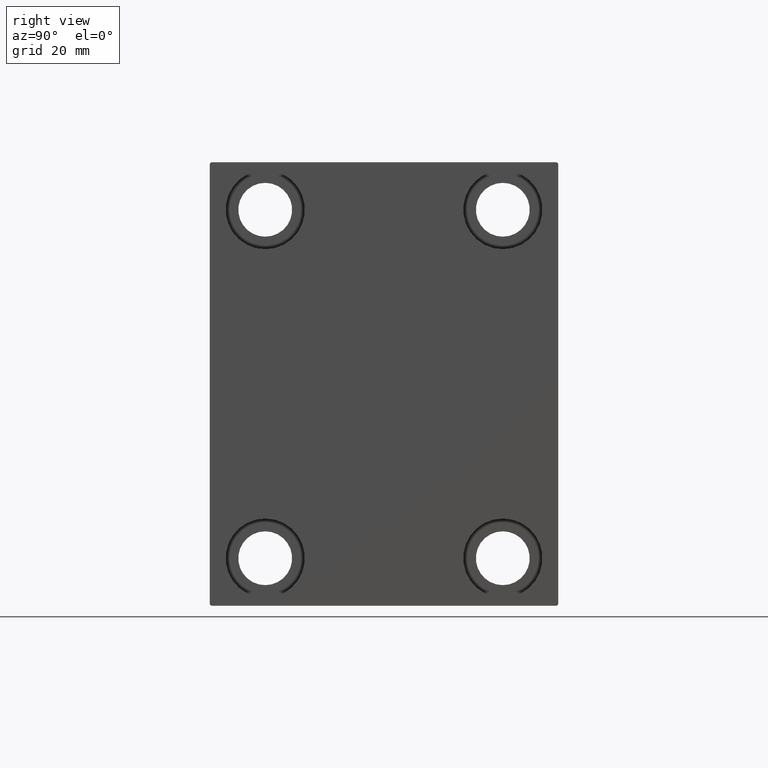
[diagram: clean part render]
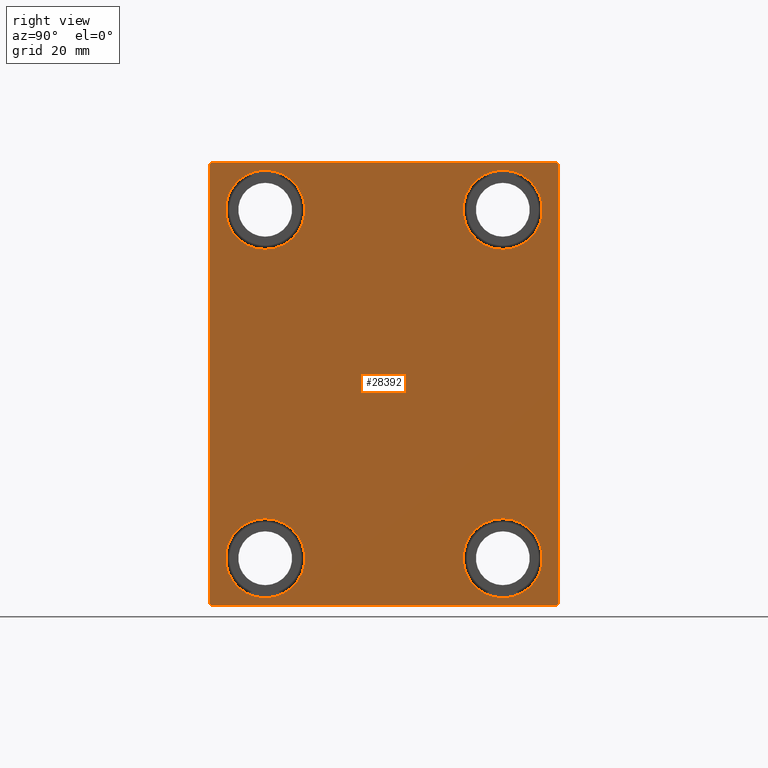
[diagram: same view with one face highlighted and labeled with its STEP entity id]
A machine part, right view. The second image highlights one B-rep face of the part: STEP entity #28392.
In plain terms, the highlighted planar face has unit normal (1, 0, 0).
Its self-contained STEP definition (entity closure, byte-faithful):
#776 = VERTEX_POINT ( 'NONE', #20090 ) ;
#1040 = AXIS2_PLACEMENT_3D ( 'NONE', #41244, #34332, #20752 ) ;
#1193 = LINE ( 'NONE', #25011, #23846 ) ;
#1345 = VERTEX_POINT ( 'NONE', #34859 ) ;
#1417 = CARTESIAN_POINT ( 'NONE',  ( 133.0000000000000000, 37.49999999999997868, -54.99999999999999289 ) ) ;
#1424 = DIRECTION ( 'NONE',  ( -1.000000000000000000, -0.000000000000000000, -0.000000000000000000 ) ) ;
#1984 = EDGE_CURVE ( 'NONE', #35167, #13497, #42323, .T. ) ;
#2400 = EDGE_CURVE ( 'NONE', #23347, #18239, #30944, .T. ) ;
#2684 = DIRECTION ( 'NONE',  ( 0.000000000000000000, 1.000000000000000000, 2.523234146875355012E-16 ) ) ;
#2693 = AXIS2_PLACEMENT_3D ( 'NONE', #34875, #21299, #31514 ) ;
#2802 = CARTESIAN_POINT ( 'NONE',  ( 133.0000000000000000, -37.50000000000000711, 67.50000000000000000 ) ) ;
#2980 = PLANE ( 'NONE',  #1040 ) ;
#3041 = LINE ( 'NONE', #27515, #28059 ) ;
#3383 = CIRCLE ( 'NONE', #2693, 12.49999999999999645 ) ;
#3700 = EDGE_CURVE ( 'NONE', #18239, #23347, #42392, .T. ) ;
#4400 = ORIENTED_EDGE ( 'NONE', *, *, #22306, .T. ) ;
#4522 = DIRECTION ( 'NONE',  ( -0.000000000000000000, 0.7071067811865376918, -0.7071067811865574537 ) ) ;
#5611 = CARTESIAN_POINT ( 'NONE',  ( 133.0000000000000000, -37.50000000000000711, 42.50000000000000711 ) ) ;
#5769 = DIRECTION ( 'NONE',  ( 0.000000000000000000, -1.982541115402065110E-16, 1.000000000000000000 ) ) ;
#6021 = AXIS2_PLACEMENT_3D ( 'NONE', #1417, #21891, #35478 ) ;
#6134 = DIRECTION ( 'NONE',  ( 0.000000000000000000, -1.000000000000000000, -1.261617073437677999E-16 ) ) ;
#6528 = FACE_BOUND ( 'NONE', #14724, .T. ) ;
#6785 = EDGE_CURVE ( 'NONE', #13497, #35167, #29628, .T. ) ;
#6905 = DIRECTION ( 'NONE',  ( -1.000000000000000000, -0.000000000000000000, -0.000000000000000000 ) ) ;
#7123 = CARTESIAN_POINT ( 'NONE',  ( 133.0000000000000000, 37.50000000000000711, 42.50000000000000711 ) ) ;
#7174 = FACE_BOUND ( 'NONE', #30402, .T. ) ;
#7722 = ORIENTED_EDGE ( 'NONE', *, *, #31959, .T. ) ;
#7941 = LINE ( 'NONE', #34883, #16606 ) ;
#8459 = VERTEX_POINT ( 'NONE', #28240 ) ;
#8645 = ORIENTED_EDGE ( 'NONE', *, *, #30619, .T. ) ;
#9853 = VERTEX_POINT ( 'NONE', #40519 ) ;
#10905 = CARTESIAN_POINT ( 'NONE',  ( 133.0000000000000000, -37.50000000000002132, -54.99999999999999289 ) ) ;
#10944 = DIRECTION ( 'NONE',  ( 0.000000000000000000, 0.000000000000000000, 1.000000000000000000 ) ) ;
#11353 = EDGE_CURVE ( 'NONE', #22723, #12120, #34833, .T. ) ;
#11505 = ORIENTED_EDGE ( 'NONE', *, *, #40516, .T. ) ;
#12120 = VERTEX_POINT ( 'NONE', #17635 ) ;
#12576 = CARTESIAN_POINT ( 'NONE',  ( 133.0000000000000000, 54.99999999999999289, 70.00000000000000000 ) ) ;
#13224 = VERTEX_POINT ( 'NONE', #7123 ) ;
#13497 = VERTEX_POINT ( 'NONE', #29323 ) ;
#13761 = VECTOR ( 'NONE', #5769, 1000.000000000000000 ) ;
#13937 = DIRECTION ( 'NONE',  ( 0.000000000000000000, 0.000000000000000000, -1.000000000000000000 ) ) ;
#14273 = CARTESIAN_POINT ( 'NONE',  ( 133.0000000000000000, 37.49999999999997868, -54.99999999999999289 ) ) ;
#14363 = ORIENTED_EDGE ( 'NONE', *, *, #33019, .T. ) ;
#14724 = EDGE_LOOP ( 'NONE', ( #22039, #11505 ) ) ;
#15138 = DIRECTION ( 'NONE',  ( 0.000000000000000000, -0.7071067811865474617, -0.7071067811865474617 ) ) ;
#15194 = DIRECTION ( 'NONE',  ( 0.000000000000000000, 0.000000000000000000, 1.000000000000000000 ) ) ;
#15425 = ORIENTED_EDGE ( 'NONE', *, *, #30202, .T. ) ;
#16149 = LINE ( 'NONE', #12576, #30717 ) ;
#16606 = VECTOR ( 'NONE', #13937, 1000.000000000000000 ) ;
#17150 = DIRECTION ( 'NONE',  ( 0.000000000000000000, 0.000000000000000000, 1.000000000000000000 ) ) ;
#17292 = ORIENTED_EDGE ( 'NONE', *, *, #39251, .T. ) ;
#17635 = CARTESIAN_POINT ( 'NONE',  ( 133.0000000000000000, 54.49999999999996447, 70.00000000000000000 ) ) ;
#18117 = LINE ( 'NONE', #29616, #26850 ) ;
#18239 = VERTEX_POINT ( 'NONE', #2802 ) ;
#18798 = CARTESIAN_POINT ( 'NONE',  ( 133.0000000000000000, 62.24999999999997868, 62.24999999999997868 ) ) ;
#18903 = CARTESIAN_POINT ( 'NONE',  ( 133.0000000000000000, 37.50000000000000711, 55.00000000000000711 ) ) ;
#19716 = ORIENTED_EDGE ( 'NONE', *, *, #1984, .T. ) ;
#19964 = DIRECTION ( 'NONE',  ( -1.000000000000000000, -0.000000000000000000, -0.000000000000000000 ) ) ;
#20090 = CARTESIAN_POINT ( 'NONE',  ( 133.0000000000000000, 37.50000000000000711, 67.50000000000000000 ) ) ;
#20168 = DIRECTION ( 'NONE',  ( -0.000000000000000000, 0.7071067811865279218, 0.7071067811865671127 ) ) ;
#20752 = DIRECTION ( 'NONE',  ( 0.000000000000000000, 0.000000000000000000, -1.000000000000000000 ) ) ;
#20755 = CARTESIAN_POINT ( 'NONE',  ( 133.0000000000000000, 55.00000000000002132, -69.50000000000000000 ) ) ;
#21299 = DIRECTION ( 'NONE',  ( -1.000000000000000000, -0.000000000000000000, -0.000000000000000000 ) ) ;
#21753 = AXIS2_PLACEMENT_3D ( 'NONE', #35025, #1424, #15194 ) ;
#21891 = DIRECTION ( 'NONE',  ( -1.000000000000000000, -0.000000000000000000, -0.000000000000000000 ) ) ;
#22039 = ORIENTED_EDGE ( 'NONE', *, *, #27273, .T. ) ;
#22306 = EDGE_CURVE ( 'NONE', #42417, #9853, #30625, .T. ) ;
#22723 = VERTEX_POINT ( 'NONE', #43154 ) ;
#23105 = AXIS2_PLACEMENT_3D ( 'NONE', #33423, #6905, #17150 ) ;
#23347 = VERTEX_POINT ( 'NONE', #5611 ) ;
#23615 = CARTESIAN_POINT ( 'NONE',  ( 133.0000000000000000, -55.00000000000000711, 69.50000000000001421 ) ) ;
#23846 = VECTOR ( 'NONE', #4522, 999.9999999999998863 ) ;
#24100 = FACE_BOUND ( 'NONE', #37372, .T. ) ;
#24514 = EDGE_LOOP ( 'NONE', ( #36074, #17292, #15425, #29772, #25300, #7722, #8645, #42915 ) ) ;
#24760 = DIRECTION ( 'NONE',  ( -1.000000000000000000, -0.000000000000000000, -0.000000000000000000 ) ) ;
#24772 = VECTOR ( 'NONE', #42404, 1000.000000000000114 ) ;
#25011 = CARTESIAN_POINT ( 'NONE',  ( 133.0000000000000000, -62.25000000000078160, -62.24999999999904787 ) ) ;
#25199 = VERTEX_POINT ( 'NONE', #27922 ) ;
#25300 = ORIENTED_EDGE ( 'NONE', *, *, #41016, .T. ) ;
#26052 = CARTESIAN_POINT ( 'NONE',  ( 133.0000000000000000, -62.25000000000000711, 62.25000000000000711 ) ) ;
#26614 = ORIENTED_EDGE ( 'NONE', *, *, #3700, .T. ) ;
#26718 = EDGE_CURVE ( 'NONE', #12120, #25199, #16149, .T. ) ;
#26850 = VECTOR ( 'NONE', #2684, 1000.000000000000000 ) ;
#27046 = CARTESIAN_POINT ( 'NONE',  ( 133.0000000000000000, 54.50000000000004974, -70.00000000000000000 ) ) ;
#27084 = CARTESIAN_POINT ( 'NONE',  ( 133.0000000000000000, -37.50000000000000711, 55.00000000000000711 ) ) ;
#27273 = EDGE_CURVE ( 'NONE', #13224, #776, #34420, .T. ) ;
#27515 = CARTESIAN_POINT ( 'NONE',  ( 133.0000000000000000, 62.25000000000153477, -62.24999999999808153 ) ) ;
#27922 = CARTESIAN_POINT ( 'NONE',  ( 133.0000000000000000, -54.50000000000003553, 69.99999999999998579 ) ) ;
#28059 = VECTOR ( 'NONE', #20168, 1000.000000000000000 ) ;
#28240 = CARTESIAN_POINT ( 'NONE',  ( 133.0000000000000000, -54.50000000000000711, -70.00000000000002842 ) ) ;
#28392 = ADVANCED_FACE ( 'NONE', ( #24100, #37675, #6528, #7174, #30982 ), #2980, .T. ) ;
#29323 = CARTESIAN_POINT ( 'NONE',  ( 133.0000000000000000, -37.50000000000002132, -67.49999999999998579 ) ) ;
#29450 = AXIS2_PLACEMENT_3D ( 'NONE', #18903, #35824, #42286 ) ;
#29616 = CARTESIAN_POINT ( 'NONE',  ( 133.0000000000000000, -55.00000000000000711, -70.00000000000002842 ) ) ;
#29628 = CIRCLE ( 'NONE', #39617, 12.49999999999999645 ) ;
#29772 = ORIENTED_EDGE ( 'NONE', *, *, #34300, .T. ) ;
#30202 = EDGE_CURVE ( 'NONE', #43221, #1345, #7941, .T. ) ;
#30402 = EDGE_LOOP ( 'NONE', ( #34143, #19716 ) ) ;
#30407 = DIRECTION ( 'NONE',  ( 0.000000000000000000, 0.000000000000000000, 1.000000000000000000 ) ) ;
#30619 = EDGE_CURVE ( 'NONE', #31315, #22723, #42733, .T. ) ;
#30625 = CIRCLE ( 'NONE', #36330, 12.49999999999999645 ) ;
#30717 = VECTOR ( 'NONE', #6134, 1000.000000000000000 ) ;
#30924 = CARTESIAN_POINT ( 'NONE',  ( 133.0000000000000000, 37.49999999999997868, -42.49999999999999289 ) ) ;
#30944 = CIRCLE ( 'NONE', #43767, 12.49999999999999645 ) ;
#30982 = FACE_OUTER_BOUND ( 'NONE', #24514, .T. ) ;
#31315 = VERTEX_POINT ( 'NONE', #20755 ) ;
#31514 = DIRECTION ( 'NONE',  ( 0.000000000000000000, 0.000000000000000000, 1.000000000000000000 ) ) ;
#31913 = CARTESIAN_POINT ( 'NONE',  ( 133.0000000000000000, -37.50000000000002132, -42.49999999999999289 ) ) ;
#31959 = EDGE_CURVE ( 'NONE', #34266, #31315, #3041, .T. ) ;
#32287 = EDGE_LOOP ( 'NONE', ( #37829, #26614 ) ) ;
#33019 = EDGE_CURVE ( 'NONE', #9853, #42417, #38028, .T. ) ;
#33423 = CARTESIAN_POINT ( 'NONE',  ( 133.0000000000000000, -37.50000000000002132, -54.99999999999999289 ) ) ;
#34143 = ORIENTED_EDGE ( 'NONE', *, *, #6785, .T. ) ;
#34266 = VERTEX_POINT ( 'NONE', #27046 ) ;
#34288 = DIRECTION ( 'NONE',  ( -1.000000000000000000, -0.000000000000000000, -0.000000000000000000 ) ) ;
#34300 = EDGE_CURVE ( 'NONE', #1345, #8459, #1193, .T. ) ;
#34332 = DIRECTION ( 'NONE',  ( 1.000000000000000000, 0.000000000000000000, 0.000000000000000000 ) ) ;
#34420 = CIRCLE ( 'NONE', #29450, 12.49999999999999645 ) ;
#34833 = LINE ( 'NONE', #18798, #24772 ) ;
#34859 = CARTESIAN_POINT ( 'NONE',  ( 133.0000000000000000, -55.00000000000000711, -69.50000000000001421 ) ) ;
#34875 = CARTESIAN_POINT ( 'NONE',  ( 133.0000000000000000, 37.50000000000000711, 55.00000000000000711 ) ) ;
#34883 = CARTESIAN_POINT ( 'NONE',  ( 133.0000000000000000, -55.00000000000000711, 69.99999999999998579 ) ) ;
#35025 = CARTESIAN_POINT ( 'NONE',  ( 133.0000000000000000, -37.50000000000000711, 55.00000000000000711 ) ) ;
#35167 = VERTEX_POINT ( 'NONE', #31913 ) ;
#35478 = DIRECTION ( 'NONE',  ( 0.000000000000000000, 0.000000000000000000, 1.000000000000000000 ) ) ;
#35824 = DIRECTION ( 'NONE',  ( -1.000000000000000000, -0.000000000000000000, -0.000000000000000000 ) ) ;
#35830 = CARTESIAN_POINT ( 'NONE',  ( 133.0000000000000000, 55.00000000000002132, -70.00000000000000000 ) ) ;
#36074 = ORIENTED_EDGE ( 'NONE', *, *, #26718, .T. ) ;
#36330 = AXIS2_PLACEMENT_3D ( 'NONE', #14273, #24760, #10944 ) ;
#37372 = EDGE_LOOP ( 'NONE', ( #14363, #4400 ) ) ;
#37675 = FACE_BOUND ( 'NONE', #32287, .T. ) ;
#37829 = ORIENTED_EDGE ( 'NONE', *, *, #2400, .T. ) ;
#38028 = CIRCLE ( 'NONE', #6021, 12.49999999999999645 ) ;
#39251 = EDGE_CURVE ( 'NONE', #25199, #43221, #42969, .T. ) ;
#39617 = AXIS2_PLACEMENT_3D ( 'NONE', #10905, #34288, #41197 ) ;
#40516 = EDGE_CURVE ( 'NONE', #776, #13224, #3383, .T. ) ;
#40519 = CARTESIAN_POINT ( 'NONE',  ( 133.0000000000000000, 37.49999999999997868, -67.49999999999998579 ) ) ;
#41016 = EDGE_CURVE ( 'NONE', #8459, #34266, #18117, .T. ) ;
#41197 = DIRECTION ( 'NONE',  ( 0.000000000000000000, 0.000000000000000000, 1.000000000000000000 ) ) ;
#41244 = CARTESIAN_POINT ( 'NONE',  ( 133.0000000000000000, 0.000000000000000000, 0.000000000000000000 ) ) ;
#42286 = DIRECTION ( 'NONE',  ( 0.000000000000000000, 0.000000000000000000, 1.000000000000000000 ) ) ;
#42323 = CIRCLE ( 'NONE', #23105, 12.49999999999999645 ) ;
#42392 = CIRCLE ( 'NONE', #21753, 12.49999999999999645 ) ;
#42404 = DIRECTION ( 'NONE',  ( -0.000000000000000000, -0.7071067811865474617, 0.7071067811865474617 ) ) ;
#42417 = VERTEX_POINT ( 'NONE', #30924 ) ;
#42733 = LINE ( 'NONE', #35830, #13761 ) ;
#42915 = ORIENTED_EDGE ( 'NONE', *, *, #11353, .T. ) ;
#42969 = LINE ( 'NONE', #26052, #43182 ) ;
#43154 = CARTESIAN_POINT ( 'NONE',  ( 133.0000000000000000, 54.99999999999999289, 69.49999999999997158 ) ) ;
#43182 = VECTOR ( 'NONE', #15138, 1000.000000000000114 ) ;
#43221 = VERTEX_POINT ( 'NONE', #23615 ) ;
#43767 = AXIS2_PLACEMENT_3D ( 'NONE', #27084, #19964, #30407 ) ;